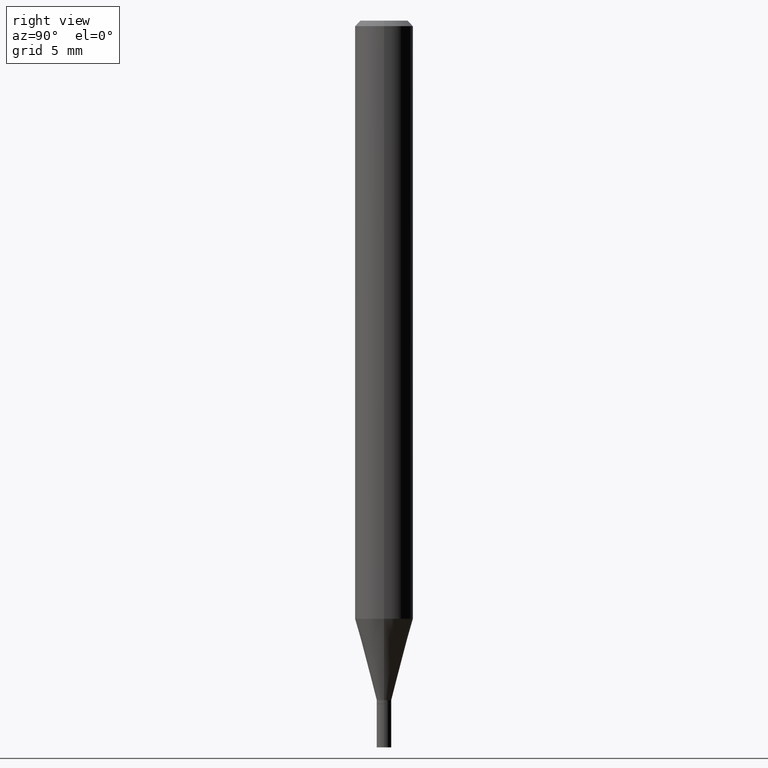
[diagram: clean part render]
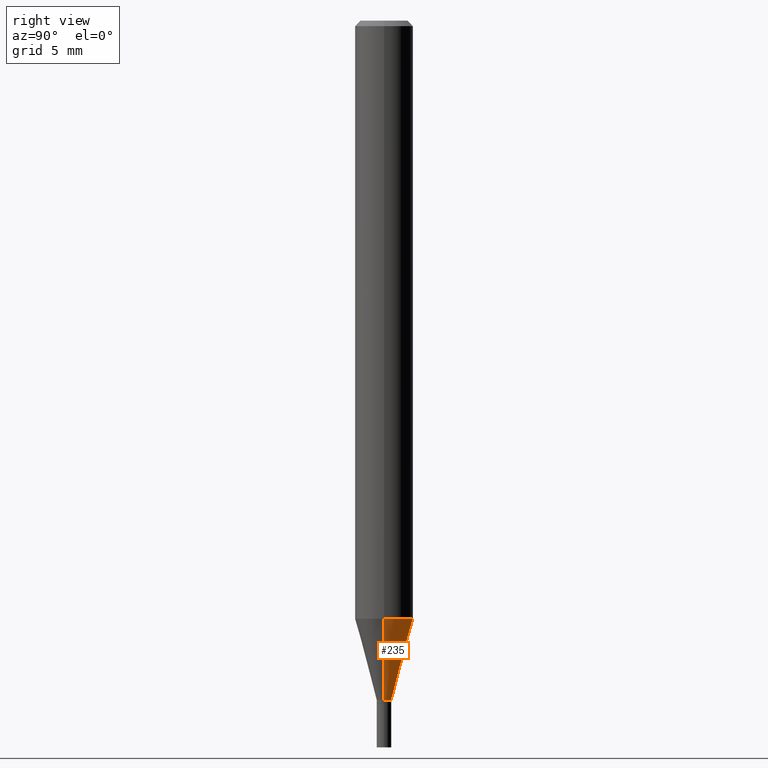
[diagram: same view with one face highlighted and labeled with its STEP entity id]
A machine part, right view. The second image highlights one B-rep face of the part: STEP entity #235.
In plain terms, the highlighted conical surface has half-angle 15 deg.
Its self-contained STEP definition (entity closure, byte-faithful):
#4 = VERTEX_POINT ( 'NONE', #363 ) ;
#7 = VERTEX_POINT ( 'NONE', #188 ) ;
#42 = AXIS2_PLACEMENT_3D ( 'NONE', #195, #157, #346 ) ;
#48 = DIRECTION ( 'NONE',  ( 1.000000000000000000, -6.982962677686261977E-15, 0.000000000000000000 ) ) ;
#58 = EDGE_LOOP ( 'NONE', ( #98, #333, #141, #458 ) ) ;
#71 = CARTESIAN_POINT ( 'NONE',  ( 0.01969999999999991896, -6.563635768891228653E-15, -1.840500000000000025 ) ) ;
#80 = DIRECTION ( 'NONE',  ( 1.000000000000000000, -6.982962677686258033E-15, 0.000000000000000000 ) ) ;
#85 = LINE ( 'NONE', #447, #90 ) ;
#90 = VECTOR ( 'NONE', #263, 39.37007874015748143 ) ;
#98 = ORIENTED_EDGE ( 'NONE', *, *, #136, .T. ) ;
#136 = EDGE_CURVE ( 'NONE', #436, #7, #386, .T. ) ;
#141 = ORIENTED_EDGE ( 'NONE', *, *, #295, .F. ) ;
#154 = CIRCLE ( 'NONE', #265, 0.07875000000000000056 ) ;
#157 = DIRECTION ( 'NONE',  ( -2.445468806185136597E-29, 3.491481338843145583E-15, 1.000000000000000000 ) ) ;
#188 = CARTESIAN_POINT ( 'NONE',  ( -0.01969999999999991896, -5.691584603187028865E-15, -1.840500000000000025 ) ) ;
#192 = DIRECTION ( 'NONE',  ( -2.445468806185136597E-29, 3.491481338843145583E-15, 1.000000000000000000 ) ) ;
#194 = CARTESIAN_POINT ( 'NONE',  ( 4.500885337783744072E-29, -6.426071404140809439E-15, -1.840500000000000025 ) ) ;
#195 = CARTESIAN_POINT ( 'NONE',  ( 4.500885337783744072E-29, -6.426071404140809439E-15, -1.840500000000000025 ) ) ;
#202 = DIRECTION ( 'NONE',  ( 0.2588190451025214611, 1.565188264969620982E-15, 0.9659258262890679791 ) ) ;
#235 = ADVANCED_FACE ( 'NONE', ( #373 ), #378, .T. ) ;
#249 = VECTOR ( 'NONE', #202, 39.37007874015748143 ) ;
#252 = EDGE_CURVE ( 'NONE', #7, #4, #85, .T. ) ;
#263 = DIRECTION ( 'NONE',  ( -0.2588190451025214611, 5.211531920934550253E-15, 0.9659258262890679791 ) ) ;
#265 = AXIS2_PLACEMENT_3D ( 'NONE', #402, #267, #48 ) ;
#267 = DIRECTION ( 'NONE',  ( -2.445468806185136597E-29, 3.491481338843145583E-15, 1.000000000000000000 ) ) ;
#271 = EDGE_CURVE ( 'NONE', #436, #321, #306, .T. ) ;
#295 = EDGE_CURVE ( 'NONE', #321, #4, #154, .T. ) ;
#306 = LINE ( 'NONE', #445, #249 ) ;
#321 = VERTEX_POINT ( 'NONE', #356 ) ;
#333 = ORIENTED_EDGE ( 'NONE', *, *, #252, .T. ) ;
#346 = DIRECTION ( 'NONE',  ( 1.000000000000000000, -6.982962677686258033E-15, 0.000000000000000000 ) ) ;
#356 = CARTESIAN_POINT ( 'NONE',  ( 0.07874999999999997280, -6.206535436456859747E-15, -1.620122399813058056 ) ) ;
#363 = CARTESIAN_POINT ( 'NONE',  ( -0.07874999999999997280, -5.097074721177987599E-15, -1.620122399813058056 ) ) ;
#373 = FACE_OUTER_BOUND ( 'NONE', #58, .T. ) ;
#378 = CONICAL_SURFACE ( 'NONE', #42, 0.01969999999999991896, 0.2617993877991501850 ) ;
#386 = CIRCLE ( 'NONE', #426, 0.01969999999999991896 ) ;
#402 = CARTESIAN_POINT ( 'NONE',  ( 3.961958790944637830E-29, -5.656627125589065612E-15, -1.620122399813058056 ) ) ;
#426 = AXIS2_PLACEMENT_3D ( 'NONE', #194, #192, #80 ) ;
#436 = VERTEX_POINT ( 'NONE', #71 ) ;
#445 = CARTESIAN_POINT ( 'NONE',  ( 0.01969999999999991896, -6.563635768891228653E-15, -1.840500000000000025 ) ) ;
#447 = CARTESIAN_POINT ( 'NONE',  ( -0.01969999999999991896, -6.286094485196070130E-15, -1.840500000000000025 ) ) ;
#458 = ORIENTED_EDGE ( 'NONE', *, *, #271, .F. ) ;